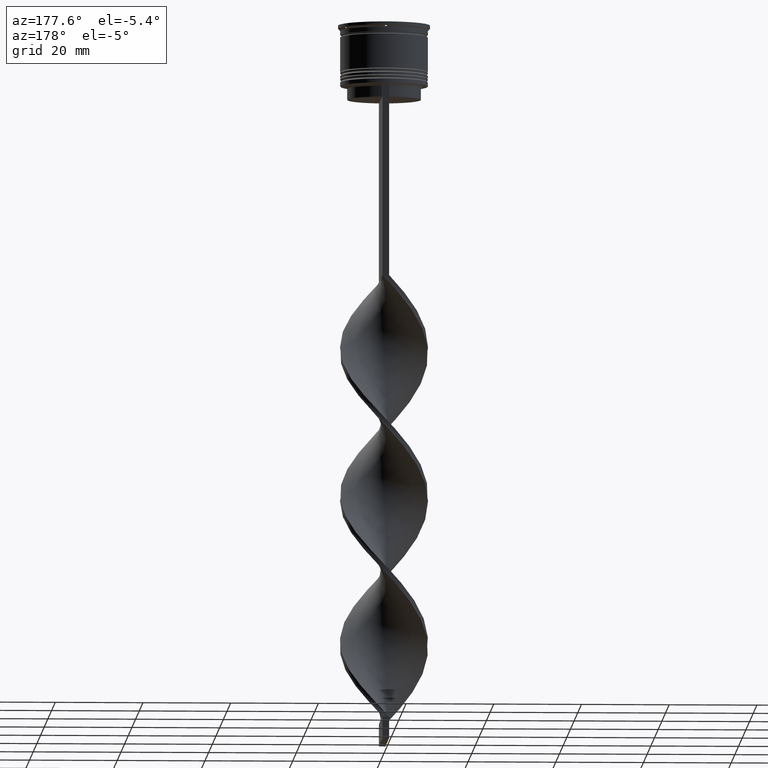
[diagram: clean part render]
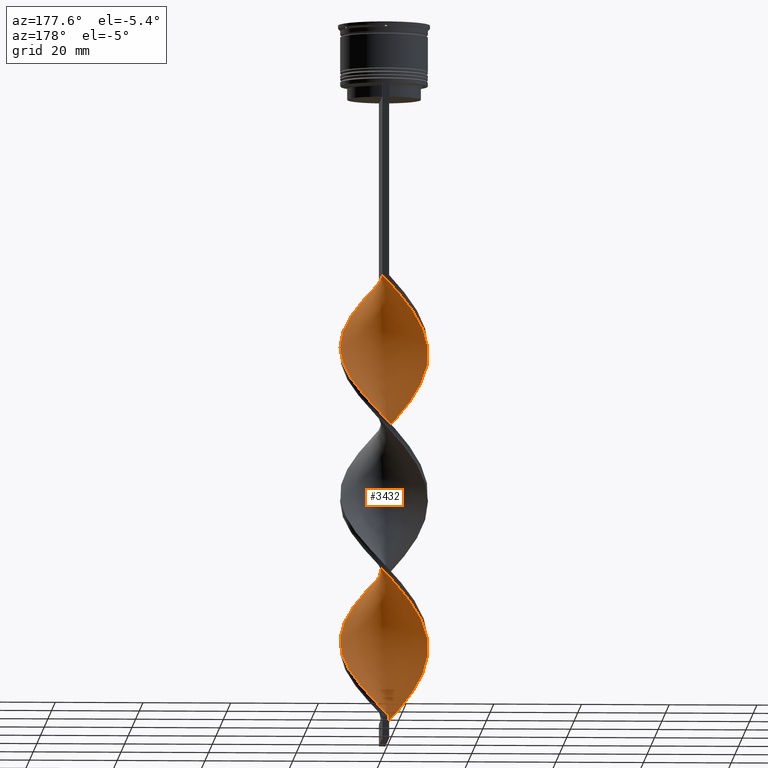
[diagram: same view with one face highlighted and labeled with its STEP entity id]
A machine part, auxiliary view. The second image highlights one B-rep face of the part: STEP entity #3432.
In plain terms, the highlighted face is a freeform B-spline surface patch.
Its self-contained STEP definition (entity closure, byte-faithful):
#1 = CARTESIAN_POINT ( 'NONE',  ( 9.035254037844389075, 4.350480947161663003, -114.1111111111111285 ) ) ;
#4 = CARTESIAN_POINT ( 'NONE',  ( -7.691465658176945830, 6.520334342467821287, -135.4333333333333371 ) ) ;
#18 = CARTESIAN_POINT ( 'NONE',  ( -3.824412864799130674, -9.329912654898729230, -155.6333333333333258 ) ) ;
#42 = CARTESIAN_POINT ( 'NONE',  ( -1.801042352656766932, -9.921171823550739788, -157.8777777777777942 ) ) ;
#45 = CARTESIAN_POINT ( 'NONE',  ( 6.929600300004795876, -7.248664682696629669, -100.6444444444444599 ) ) ;
#55 = CARTESIAN_POINT ( 'NONE',  ( -3.382207337526049962, 9.440507058732857004, -129.8222222222222229 ) ) ;
#67 = CARTESIAN_POINT ( 'NONE',  ( -7.691465658176951159, -6.520334342467823063, -115.2333333333333343 ) ) ;
#71 = CARTESIAN_POINT ( 'NONE',  ( 4.374444612454384540, -9.085022743012224566, -97.27777777777779988 ) ) ;
#76 = EDGE_CURVE ( 'NONE', #321, #3367, #2450, .T. ) ;
#77 = CARTESIAN_POINT ( 'NONE',  ( -7.288592354231109738, 6.967770475720659107, -99.52222222222223991 ) ) ;
#88 = CARTESIAN_POINT ( 'NONE',  ( 7.933296209543089006, -6.133947444480539524, -134.3111111111111313 ) ) ;
#90 = CARTESIAN_POINT ( 'NONE',  ( 9.278802417170323835, -3.803462330970840632, -105.1333333333333400 ) ) ;
#97 = CARTESIAN_POINT ( 'NONE',  ( 9.035254037844390851, -4.350480947161673662, -69.22222222222222854 ) ) ;
#107 = CARTESIAN_POINT ( 'NONE',  ( 5.271089777143525446, 8.531008882968833973, -152.2666666666666799 ) ) ;
#112 = CARTESIAN_POINT ( 'NONE',  ( 7.933296209543089006, -6.133947444480539524, -66.97777777777777430 ) ) ;
#118 = CARTESIAN_POINT ( 'NONE',  ( -5.680638183180775513, 8.330891533339592314, -97.27777777777778567 ) ) ;
#129 = CARTESIAN_POINT ( 'NONE',  ( 9.866822606231998805, 1.791176054202738843, -75.95555555555554861 ) ) ;
#139 = CARTESIAN_POINT ( 'NONE',  ( 9.492508010833713428, -3.400837481082924718, -137.6777777777777487 ) ) ;
#144 = DIRECTION ( 'NONE',  ( 0.000000000000000000, 1.000000000000000000, 0.000000000000000000 ) ) ;
#150 = CARTESIAN_POINT ( 'NONE',  ( -5.680638183180775513, 8.330891533339592314, -97.27777777777779988 ) ) ;
#155 = CARTESIAN_POINT ( 'NONE',  ( 6.484615268705942626, 7.649331004530116829, -118.6000000000000085 ) ) ;
#156 = CARTESIAN_POINT ( 'NONE',  ( -3.382207337526049518, 9.440507058732857004, -62.48888888888889426 ) ) ;
#164 = CARTESIAN_POINT ( 'NONE',  ( 8.578000064855064721, 5.300124413240417276, -115.2333333333333343 ) ) ;
#180 = CARTESIAN_POINT ( 'NONE',  ( -6.929600300004796765, 7.248664682696627892, -66.97777777777777430 ) ) ;
#202 = CARTESIAN_POINT ( 'NONE',  ( -9.866822606231991699, 1.791176054202741730, -73.71111111111112280 ) ) ;
#224 = CARTESIAN_POINT ( 'NONE',  ( -7.933296209543087230, -6.133947444480532418, -150.0222222222222115 ) ) ;
#241 = CARTESIAN_POINT ( 'NONE',  ( -3.824412864799130674, -9.329912654898729230, -88.29999999999998295 ) ) ;
#264 = CARTESIAN_POINT ( 'NONE',  ( -10.02361530113347143, -0.2993932111503280202, -143.2888888888889198 ) ) ;
#270 = CARTESIAN_POINT ( 'NONE',  ( -7.288592354231108850, -6.967770475720649337, -83.81111111111111711 ) ) ;
#291 = CARTESIAN_POINT ( 'NONE',  ( -0.7500000000000013323, -9.999999999999998224, -159.0000000000000000 ) ) ;
#313 = CARTESIAN_POINT ( 'NONE',  ( -8.578000064855064721, -5.300124413240419052, -148.8999999999999488 ) ) ;
#316 = CARTESIAN_POINT ( 'NONE',  ( -1.801042352656767154, -9.921171823550741564, -90.54444444444445139 ) ) ;
#320 = CARTESIAN_POINT ( 'NONE',  ( 8.578000064855064721, 5.300124413240417276, -115.2333333333333343 ) ) ;
#321 = VERTEX_POINT ( 'NONE', #3156 ) ;
#338 = CARTESIAN_POINT ( 'NONE',  ( 9.992147806631789919, -1.352917631973299173, -72.58888888888890278 ) ) ;
#341 = CARTESIAN_POINT ( 'NONE',  ( 6.167734941832646811, -7.976995022925432721, -99.52222222222223991 ) ) ;
#346 = CARTESIAN_POINT ( 'NONE',  ( 2.812727608727948247, -9.625542239224740726, -60.24444444444444713 ) ) ;
#359 = CARTESIAN_POINT ( 'NONE',  ( 5.271089777143525446, 8.531008882968833973, -84.93333333333333712 ) ) ;
#362 = CARTESIAN_POINT ( 'NONE',  ( 2.389970062597711831, -9.795991374453492995, -95.03333333333331723 ) ) ;
#374 = CARTESIAN_POINT ( 'NONE',  ( 4.374444612454393422, 9.085022743012228119, -153.3888888888889142 ) ) ;
#391 = CARTESIAN_POINT ( 'NONE',  ( -8.879042417511836760, -4.778703763208835831, -112.9888888888888943 ) ) ;
#401 = CARTESIAN_POINT ( 'NONE',  ( 9.278802417170330941, 3.803462330970840632, -78.20000000000000284 ) ) ;
#412 = CARTESIAN_POINT ( 'NONE',  ( 9.742327908732750785, -2.376877556528111057, -138.8000000000000114 ) ) ;
#421 = CARTESIAN_POINT ( 'NONE',  ( 2.812727608727948247, -9.625542239224740726, -127.5777777777777828 ) ) ;
#428 = CARTESIAN_POINT ( 'NONE',  ( -9.492508010833709875, -3.400837481082919389, -79.32222222222222285 ) ) ;
#431 = CARTESIAN_POINT ( 'NONE',  ( 0.7500000000000001110, -10.00000000000000533, -125.3333333333333570 ) ) ;
#440 = CARTESIAN_POINT ( 'NONE',  ( 10.05508279563516716, 0.7541312096726368042, -74.83333333333332860 ) ) ;
#447 = CARTESIAN_POINT ( 'NONE',  ( 4.374444612454393422, 9.085022743012228119, -86.05555555555557135 ) ) ;
#459 = CARTESIAN_POINT ( 'NONE',  ( 9.492508010833715204, -3.400837481082924718, -70.34444444444444855 ) ) ;
#487 = CARTESIAN_POINT ( 'NONE',  ( -9.866822606231991699, 1.791176054202741952, -73.71111111111112280 ) ) ;
#493 = CARTESIAN_POINT ( 'NONE',  ( -6.484615268705941737, -7.649331004530116829, -84.93333333333333712 ) ) ;
#503 = CARTESIAN_POINT ( 'NONE',  ( -4.374444612454386316, 9.085022743012224566, -63.61111111111112137 ) ) ;
#533 = CARTESIAN_POINT ( 'NONE',  ( -8.578000064855064721, -5.300124413240419052, -81.56666666666664867 ) ) ;
#558 = CARTESIAN_POINT ( 'NONE',  ( -9.992147806631782814, -1.352917631973294510, -77.07777777777778283 ) ) ;
#570 = CARTESIAN_POINT ( 'NONE',  ( -0.7500000000000005551, -3.333333333333330373, -159.0000000000000000 ) ) ;
#574 = CARTESIAN_POINT ( 'NONE',  ( 8.285254037844390851, 5.649519052838329891, -80.44444444444445708 ) ) ;
#586 = CARTESIAN_POINT ( 'NONE',  ( 0.7500000000000002220, 9.999999999999998224, -125.3333333333333570 ) ) ;
#591 = CARTESIAN_POINT ( 'NONE',  ( -3.382207337526049518, 9.440507058732857004, -129.8222222222222229 ) ) ;
#595 = CARTESIAN_POINT ( 'NONE',  ( -9.035254037844387298, -4.350480947161667444, -147.7777777777777715 ) ) ;
#596 = CARTESIAN_POINT ( 'NONE',  ( 4.752525523989958423, 8.830402094119152778, -120.8444444444444485 ) ) ;
#620 = CARTESIAN_POINT ( 'NONE',  ( -9.492508010833708099, -3.400837481082919389, -146.6555555555555657 ) ) ;
#632 = CARTESIAN_POINT ( 'NONE',  ( -8.285254037844383745, 5.649519052838329891, -136.5555555555555713 ) ) ;
#641 = CARTESIAN_POINT ( 'NONE',  ( 5.680638183180777290, -8.330891533339590538, -63.61111111111111427 ) ) ;
#655 = EDGE_LOOP ( 'NONE', ( #1326, #727, #1997, #3649 ) ) ;
#660 = CARTESIAN_POINT ( 'NONE',  ( -9.992147806631782814, -1.352917631973294510, -144.4111111111111541 ) ) ;
#663 = CARTESIAN_POINT ( 'NONE',  ( 7.691465658176943165, -6.520334342467822175, -101.7666666666666515 ) ) ;
#682 = CARTESIAN_POINT ( 'NONE',  ( 9.278802417170330941, 3.803462330970840632, -145.5333333333333599 ) ) ;
#697 = CARTESIAN_POINT ( 'NONE',  ( -7.933296209543089006, 6.133947444480543076, -100.6444444444444599 ) ) ;
#704 = CARTESIAN_POINT ( 'NONE',  ( -5.271089777143526334, -8.531008882968833973, -118.6000000000000085 ) ) ;
#712 = CARTESIAN_POINT ( 'NONE',  ( 7.288592354231111514, -6.967770475720657330, -133.1888888888889255 ) ) ;
#723 = CARTESIAN_POINT ( 'NONE',  ( 6.167734941832656581, 7.976995022925434498, -83.81111111111111711 ) ) ;
#727 = ORIENTED_EDGE ( 'NONE', *, *, #2250, .T. ) ;
#735 = CARTESIAN_POINT ( 'NONE',  ( 6.929600300004804758, 7.248664682696628780, -150.0222222222222115 ) ) ;
#745 = CARTESIAN_POINT ( 'NONE',  ( 9.742327908732750785, -2.376877556528111057, -71.46666666666668277 ) ) ;
#753 = CARTESIAN_POINT ( 'NONE',  ( -8.285254037844394404, -5.649519052838325450, -114.1111111111111285 ) ) ;
#763 = CARTESIAN_POINT ( 'NONE',  ( 4.374444612454394310, 9.085022743012228119, -86.05555555555557135 ) ) ;
#783 = CARTESIAN_POINT ( 'NONE',  ( -8.578000064855068274, 5.300124413240425270, -101.7666666666666515 ) ) ;
#801 = CARTESIAN_POINT ( 'NONE',  ( -6.167734941832649476, 7.976995022925432721, -65.85555555555555429 ) ) ;
#807 = CARTESIAN_POINT ( 'NONE',  ( 10.05508279563516716, 0.7541312096726368042, -142.1666666666666856 ) ) ;
#833 = CARTESIAN_POINT ( 'NONE',  ( -9.742327908732745456, -2.376877556528107949, -78.20000000000000284 ) ) ;
#838 = CARTESIAN_POINT ( 'NONE',  ( 3.382207337526056179, 9.440507058732862333, -154.5111111111111200 ) ) ;
#876 = CARTESIAN_POINT ( 'NONE',  ( -0.3010423526567641006, 10.07882817644925666, -59.12222222222222712 ) ) ;
#879 = CARTESIAN_POINT ( 'NONE',  ( -4.374444612454386316, 9.085022743012224566, -63.61111111111111427 ) ) ;
#897 = CARTESIAN_POINT ( 'NONE',  ( -0.3010423526567642116, 10.07882817644925666, -126.4555555555555628 ) ) ;
#903 = CARTESIAN_POINT ( 'NONE',  ( 10.02361530113347143, 0.2993932111503244675, -109.6222222222222342 ) ) ;
#920 = CARTESIAN_POINT ( 'NONE',  ( -1.801042352656767154, -9.921171823550741564, -157.8777777777777942 ) ) ;
#921 = CARTESIAN_POINT ( 'NONE',  ( 9.035254037844390851, -4.350480947161673662, -69.22222222222222854 ) ) ;
#941 = CARTESIAN_POINT ( 'NONE',  ( -2.389970062597713163, 9.795991374453491218, -128.6999999999999886 ) ) ;
#954 = CARTESIAN_POINT ( 'NONE',  ( -10.05508279563516005, 0.7541312096726382475, -142.1666666666666856 ) ) ;
#961 = CARTESIAN_POINT ( 'NONE',  ( 7.288592354231113291, 6.967770475720644896, -117.4777777777777885 ) ) ;
#978 = CARTESIAN_POINT ( 'NONE',  ( 9.278802417170330941, 3.803462330970840632, -78.20000000000000284 ) ) ;
#992 = CARTESIAN_POINT ( 'NONE',  ( -5.271089777143520116, 8.531008882968830420, -132.0666666666666629 ) ) ;
#997 = CARTESIAN_POINT ( 'NONE',  ( 2.812727608727948247, -9.625542239224740726, -127.5777777777777828 ) ) ;
#1004 = CARTESIAN_POINT ( 'NONE',  ( 4.752525523989954870, -8.830402094119163436, -62.48888888888889426 ) ) ;
#1009 = CARTESIAN_POINT ( 'NONE',  ( -9.992147806631789919, 1.352917631973302282, -106.2555555555555742 ) ) ;
#1014 = CARTESIAN_POINT ( 'NONE',  ( 9.678562416828828674, 2.828220898732840993, -77.07777777777778283 ) ) ;
#1020 = CARTESIAN_POINT ( 'NONE',  ( -7.288592354231109738, 6.967770475720659107, -99.52222222222223991 ) ) ;
#1033 = CARTESIAN_POINT ( 'NONE',  ( -4.752525523989951317, 8.830402094119165213, -96.15555555555556566 ) ) ;
#1044 = CARTESIAN_POINT ( 'NONE',  ( -1.801042352656761159, 9.921171823550748670, -92.78888888888889142 ) ) ;
#1054 = CARTESIAN_POINT ( 'NONE',  ( 7.691465658176951159, 6.520334342467823951, -81.56666666666666288 ) ) ;
#1060 = CARTESIAN_POINT ( 'NONE',  ( -9.278802417170323835, 3.803462330970839744, -71.46666666666668277 ) ) ;
#1063 = CARTESIAN_POINT ( 'NONE',  ( 10.02361530113347854, -0.2993932111503322391, -141.0444444444444514 ) ) ;
#1073 = CARTESIAN_POINT ( 'NONE',  ( -9.678562416828830450, -2.828220898732835220, -110.7444444444444542 ) ) ;
#1080 = CARTESIAN_POINT ( 'NONE',  ( -9.678562416828818016, 2.828220898732843214, -72.58888888888890278 ) ) ;
#1087 = CARTESIAN_POINT ( 'NONE',  ( -2.389970062597713163, 9.795991374453491218, -61.36666666666666003 ) ) ;
#1093 = CARTESIAN_POINT ( 'NONE',  ( 9.035254037844390851, -4.350480947161673662, -136.5555555555555713 ) ) ;
#1113 = CARTESIAN_POINT ( 'NONE',  ( -7.288592354231108850, -6.967770475720650225, -83.81111111111111711 ) ) ;
#1116 = CARTESIAN_POINT ( 'NONE',  ( 1.345506207627244155, 9.937409775451381932, -156.7555555555555600 ) ) ;
#1126 = CARTESIAN_POINT ( 'NONE',  ( -2.812727608727951356, -9.625542239224735397, -156.7555555555555600 ) ) ;
#1127 = CARTESIAN_POINT ( 'NONE',  ( 10.05508279563516005, -0.7541312096726393577, -108.5000000000000000 ) ) ;
#1133 = CARTESIAN_POINT ( 'NONE',  ( 6.929600300004804758, 7.248664682696628780, -150.0222222222222115 ) ) ;
#1145 = CARTESIAN_POINT ( 'NONE',  ( -1.801042352656766932, -9.921171823550739788, -90.54444444444445139 ) ) ;
#1172 = CARTESIAN_POINT ( 'NONE',  ( 7.691465658176944054, -6.520334342467822175, -101.7666666666666515 ) ) ;
#1179 = CARTESIAN_POINT ( 'NONE',  ( 9.866822606231998805, 1.791176054202738843, -143.2888888888889198 ) ) ;
#1192 = CARTESIAN_POINT ( 'NONE',  ( -9.678562416828818016, 2.828220898732842770, -139.9222222222222172 ) ) ;
#1215 = CARTESIAN_POINT ( 'NONE',  ( -4.374444612454386316, 9.085022743012224566, -130.9444444444444287 ) ) ;
#1225 = CARTESIAN_POINT ( 'NONE',  ( 2.812727608727952688, 9.625542239224735397, -123.0888888888888886 ) ) ;
#1242 = CARTESIAN_POINT ( 'NONE',  ( 1.801042352656772705, 9.921171823550739788, -124.2111111111111370 ) ) ;
#1262 = CARTESIAN_POINT ( 'NONE',  ( 9.866822606231998805, 1.791176054202738843, -75.95555555555554861 ) ) ;
#1273 = CARTESIAN_POINT ( 'NONE',  ( 2.812727608727948247, -9.625542239224740726, -60.24444444444444713 ) ) ;
#1280 = EDGE_CURVE ( 'NONE', #3491, #321, #3159, .T. ) ;
#1286 = CARTESIAN_POINT ( 'NONE',  ( 6.167734941832655693, 7.976995022925434498, -151.1444444444444457 ) ) ;
#1296 = CARTESIAN_POINT ( 'NONE',  ( -8.879042417511836760, -4.778703763208834943, -112.9888888888888943 ) ) ;
#1305 = CARTESIAN_POINT ( 'NONE',  ( -5.271089777143526334, -8.531008882968833973, -118.6000000000000085 ) ) ;
#1312 = CARTESIAN_POINT ( 'NONE',  ( -9.492508010833711651, 3.400837481082930491, -104.0111111111111057 ) ) ;
#1321 = CARTESIAN_POINT ( 'NONE',  ( -9.742327908732745456, -2.376877556528107505, -78.20000000000000284 ) ) ;
#1325 = CARTESIAN_POINT ( 'NONE',  ( 3.382207337526056179, 9.440507058732862333, -154.5111111111111200 ) ) ;
#1326 = ORIENTED_EDGE ( 'NONE', *, *, #2626, .F. ) ;
#1332 = CARTESIAN_POINT ( 'NONE',  ( 5.680638183180777290, -8.330891533339590538, -130.9444444444444571 ) ) ;
#1340 = CARTESIAN_POINT ( 'NONE',  ( 3.824412864799132006, -9.329912654898736335, -128.6999999999999886 ) ) ;
#1353 = CARTESIAN_POINT ( 'NONE',  ( -4.374444612454396974, -9.085022743012226343, -119.7222222222222143 ) ) ;
#1361 = CARTESIAN_POINT ( 'NONE',  ( 10.05508279563516716, 0.7541312096726368042, -142.1666666666666856 ) ) ;
#1376 = CARTESIAN_POINT ( 'NONE',  ( -6.484615268705943514, 7.649331004530123934, -98.40000000000001990 ) ) ;
#1407 = CARTESIAN_POINT ( 'NONE',  ( -10.02361530113347143, -0.2993932111503280202, -75.95555555555554861 ) ) ;
#1414 = CARTESIAN_POINT ( 'NONE',  ( 8.285254037844390851, 5.649519052838329891, -147.7777777777777715 ) ) ;
#1433 = CARTESIAN_POINT ( 'NONE',  ( 9.278802417170323835, -3.803462330970840188, -105.1333333333333400 ) ) ;
#1438 = CARTESIAN_POINT ( 'NONE',  ( 7.933296209543089006, -6.133947444480539524, -134.3111111111111313 ) ) ;
#1442 = CARTESIAN_POINT ( 'NONE',  ( 0.7500000000000001110, -10.00000000000000533, -58.00000000000000000 ) ) ;
#1445 = CARTESIAN_POINT ( 'NONE',  ( 0.7500000000000002220, 9.999999999999998224, -58.00000000000000000 ) ) ;
#1451 = CARTESIAN_POINT ( 'NONE',  ( -7.933296209543087230, -6.133947444480532418, -82.68888888888889710 ) ) ;
#1460 = CARTESIAN_POINT ( 'NONE',  ( 5.680638183180778178, 8.330891533339583432, -119.7222222222222143 ) ) ;
#1468 = CARTESIAN_POINT ( 'NONE',  ( -8.578000064855064721, -5.300124413240419052, -148.8999999999999773 ) ) ;
#1486 = CARTESIAN_POINT ( 'NONE',  ( -2.389970062597713163, 9.795991374453491218, -128.7000000000000171 ) ) ;
#1490 = CARTESIAN_POINT ( 'NONE',  ( -7.933296209543087230, -6.133947444480532418, -150.0222222222222115 ) ) ;
#1495 = CARTESIAN_POINT ( 'NONE',  ( -6.484615268705941737, -7.649331004530116829, -84.93333333333333712 ) ) ;
#1512 = CARTESIAN_POINT ( 'NONE',  ( -4.752525523989953982, -8.830402094119154555, -154.5111111111111200 ) ) ;
#1513 = CARTESIAN_POINT ( 'NONE',  ( 1.801042352656765155, -9.921171823550746893, -59.12222222222222712 ) ) ;
#1517 = CARTESIAN_POINT ( 'NONE',  ( -5.680638183180776402, -8.330891533339583432, -86.05555555555557135 ) ) ;
#1533 = CARTESIAN_POINT ( 'NONE',  ( -9.278802417170323835, 3.803462330970839300, -138.8000000000000114 ) ) ;
#1535 = CARTESIAN_POINT ( 'NONE',  ( -0.7500000000000014433, -9.999999999999998224, -91.66666666666667140 ) ) ;
#1558 = CARTESIAN_POINT ( 'NONE',  ( 7.288592354231111514, -6.967770475720657330, -65.85555555555555429 ) ) ;
#1566 = CARTESIAN_POINT ( 'NONE',  ( -9.278802417170323835, 3.803462330970839744, -138.8000000000000114 ) ) ;
#1576 = CARTESIAN_POINT ( 'NONE',  ( -8.285254037844383745, 5.649519052838329891, -136.5555555555555713 ) ) ;
#1588 = CARTESIAN_POINT ( 'NONE',  ( -2.389970062597713163, 9.795991374453491218, -61.36666666666666003 ) ) ;
#1590 = CARTESIAN_POINT ( 'NONE',  ( 9.866822606231998805, 1.791176054202738843, -143.2888888888889198 ) ) ;
#1599 = CARTESIAN_POINT ( 'NONE',  ( -9.278802417170330941, -3.803462330970838856, -111.8666666666666742 ) ) ;
#1604 = CARTESIAN_POINT ( 'NONE',  ( -2.389970062597717604, -9.795991374453498324, -121.9666666666666544 ) ) ;
#1612 = VECTOR ( 'NONE', #144, 1000.000000000000000 ) ;
#1614 = CARTESIAN_POINT ( 'NONE',  ( 0.7500000000000001110, -10.00000000000000533, -125.3333333333333570 ) ) ;
#1627 = CARTESIAN_POINT ( 'NONE',  ( 9.992147806631789919, -1.352917631973299173, -139.9222222222222172 ) ) ;
#1628 = CARTESIAN_POINT ( 'NONE',  ( 10.05508279563516005, -0.7541312096726393577, -108.5000000000000000 ) ) ;
#1633 = CARTESIAN_POINT ( 'NONE',  ( 3.824412864799132006, -9.329912654898734559, -128.7000000000000171 ) ) ;
#1644 = CARTESIAN_POINT ( 'NONE',  ( -6.929600300004805646, -7.248664682696627892, -116.3555555555555685 ) ) ;
#1652 = CARTESIAN_POINT ( 'NONE',  ( 6.484615268705944402, -7.649331004530123934, -64.73333333333333428 ) ) ;
#1658 = CARTESIAN_POINT ( 'NONE',  ( -7.691465658176945830, 6.520334342467821287, -68.10000000000000853 ) ) ;
#1661 = CARTESIAN_POINT ( 'NONE',  ( 0.3010423526567679309, 10.07882817644926376, -90.54444444444445139 ) ) ;
#1677 = CARTESIAN_POINT ( 'NONE',  ( 2.389970062597715827, 9.795991374453498324, -88.29999999999998295 ) ) ;
#1691 = CARTESIAN_POINT ( 'NONE',  ( 10.02361530113347143, 0.2993932111503245785, -109.6222222222222342 ) ) ;
#1696 = CARTESIAN_POINT ( 'NONE',  ( 8.578000064855070050, -5.300124413240424381, -135.4333333333333371 ) ) ;
#1707 = CARTESIAN_POINT ( 'NONE',  ( -0.3010423526567642116, 10.07882817644925666, -59.12222222222222712 ) ) ;
#1719 = CARTESIAN_POINT ( 'NONE',  ( -10.02361530113347143, -0.2993932111503279092, -75.95555555555554861 ) ) ;
#1725 = CARTESIAN_POINT ( 'NONE',  ( 0.7500000000000001110, 9.999999999999998224, -58.00000000000000000 ) ) ;
#1746 = CARTESIAN_POINT ( 'NONE',  ( 0.7500000000000002220, 9.999999999999998224, -58.00000000000000000 ) ) ;
#1749 = CARTESIAN_POINT ( 'NONE',  ( -9.278802417170323835, 3.803462330970839300, -71.46666666666668277 ) ) ;
#1770 = CARTESIAN_POINT ( 'NONE',  ( -7.691465658176945830, 6.520334342467821287, -68.10000000000002274 ) ) ;
#1785 = CARTESIAN_POINT ( 'NONE',  ( -1.345506207627238382, 9.937409775451374827, -60.24444444444444713 ) ) ;
#1790 = CARTESIAN_POINT ( 'NONE',  ( -6.484615268705941737, -7.649331004530116829, -152.2666666666666799 ) ) ;
#1811 = CARTESIAN_POINT ( 'NONE',  ( -3.824412864799130674, -9.329912654898727453, -155.6333333333333542 ) ) ;
#1812 = CARTESIAN_POINT ( 'NONE',  ( -5.680638183180776402, -8.330891533339581656, -153.3888888888889142 ) ) ;
#1824 = CARTESIAN_POINT ( 'NONE',  ( 9.992147806631784590, 1.352917631973288071, -110.7444444444444542 ) ) ;
#1837 = CARTESIAN_POINT ( 'NONE',  ( 9.678562416828826898, 2.828220898732840549, -77.07777777777778283 ) ) ;
#1839 = CARTESIAN_POINT ( 'NONE',  ( -4.752525523989953982, -8.830402094119154555, -87.17777777777779136 ) ) ;
#1845 = CARTESIAN_POINT ( 'NONE',  ( -8.879042417511827878, 4.778703763208838495, -137.6777777777777487 ) ) ;
#1857 = CARTESIAN_POINT ( 'NONE',  ( 8.578000064855068274, -5.300124413240424381, -68.10000000000002274 ) ) ;
#1877 = CARTESIAN_POINT ( 'NONE',  ( 6.929600300004804758, 7.248664682696628780, -82.68888888888889710 ) ) ;
#1896 = CARTESIAN_POINT ( 'NONE',  ( 8.879042417511834984, 4.778703763208838495, -146.6555555555555657 ) ) ;
#1906 = CARTESIAN_POINT ( 'NONE',  ( -9.742327908732750785, 2.376877556528111946, -105.1333333333333400 ) ) ;
#1910 = VERTEX_POINT ( 'NONE', #1442 ) ;
#1915 = CARTESIAN_POINT ( 'NONE',  ( -1.345506207627245487, -9.937409775451381932, -123.0888888888888886 ) ) ;
#1923 = CARTESIAN_POINT ( 'NONE',  ( -4.374444612454396086, -9.085022743012226343, -119.7222222222222143 ) ) ;
#1935 = CARTESIAN_POINT ( 'NONE',  ( -9.866822606231998805, -1.791176054202735513, -109.6222222222222342 ) ) ;
#1943 = CARTESIAN_POINT ( 'NONE',  ( -10.05508279563516005, 0.7541312096726382475, -74.83333333333332860 ) ) ;
#1945 = CARTESIAN_POINT ( 'NONE',  ( 3.382207337526056179, 9.440507058732862333, -87.17777777777779136 ) ) ;
#1953 = CARTESIAN_POINT ( 'NONE',  ( -3.382207337526060620, -9.440507058732860557, -120.8444444444444485 ) ) ;
#1962 = CARTESIAN_POINT ( 'NONE',  ( -1.345506207627245487, -9.937409775451381932, -123.0888888888888886 ) ) ;
#1967 = CARTESIAN_POINT ( 'NONE',  ( 0.7500000000000001110, -10.00000000000000533, -58.00000000000000000 ) ) ;
#1972 = CARTESIAN_POINT ( 'NONE',  ( -9.035254037844390851, 4.350480947161678102, -102.8888888888888857 ) ) ;
#1989 = CARTESIAN_POINT ( 'NONE',  ( 5.271089777143525446, 8.531008882968833973, -84.93333333333333712 ) ) ;
#1996 = CARTESIAN_POINT ( 'NONE',  ( -5.271089777143520116, 8.531008882968830420, -64.73333333333333428 ) ) ;
#1997 = ORIENTED_EDGE ( 'NONE', *, *, #76, .F. ) ;
#2006 = CARTESIAN_POINT ( 'NONE',  ( 3.382207337526045965, -9.440507058732858781, -96.15555555555556566 ) ) ;
#2010 = CARTESIAN_POINT ( 'NONE',  ( 5.271089777143525446, 8.531008882968833973, -152.2666666666666799 ) ) ;
#2022 = CARTESIAN_POINT ( 'NONE',  ( 4.374444612454384540, -9.085022743012224566, -97.27777777777778567 ) ) ;
#2041 = CARTESIAN_POINT ( 'NONE',  ( -5.680638183180776402, -8.330891533339581656, -86.05555555555557135 ) ) ;
#2048 = CARTESIAN_POINT ( 'NONE',  ( 9.278802417170330941, 3.803462330970840632, -145.5333333333333599 ) ) ;
#2063 = CARTESIAN_POINT ( 'NONE',  ( 7.288592354231113291, 6.967770475720644896, -117.4777777777777885 ) ) ;
#2067 = CARTESIAN_POINT ( 'NONE',  ( -3.382207337526049962, 9.440507058732857004, -62.48888888888889426 ) ) ;
#2076 = CARTESIAN_POINT ( 'NONE',  ( -9.678562416828818016, 2.828220898732843214, -139.9222222222222172 ) ) ;
#2086 = CARTESIAN_POINT ( 'NONE',  ( -0.7500000000000014433, -9.999999999999998224, -159.0000000000000000 ) ) ;
#2087 = CARTESIAN_POINT ( 'NONE',  ( 9.866822606231989923, -1.791176054202747281, -107.3777777777777942 ) ) ;
#2104 = CARTESIAN_POINT ( 'NONE',  ( -6.929600300004796765, 7.248664682696627892, -134.3111111111111313 ) ) ;
#2113 = CARTESIAN_POINT ( 'NONE',  ( -6.929600300004796765, 7.248664682696627892, -134.3111111111111313 ) ) ;
#2127 = CARTESIAN_POINT ( 'NONE',  ( 10.05508279563516716, 0.7541312096726368042, -74.83333333333334281 ) ) ;
#2148 = CARTESIAN_POINT ( 'NONE',  ( 0.7500000000000001110, -10.00000000000000533, -58.00000000000000000 ) ) ;
#2168 = CARTESIAN_POINT ( 'NONE',  ( 8.879042417511834984, 4.778703763208838495, -79.32222222222222285 ) ) ;
#2189 = CARTESIAN_POINT ( 'NONE',  ( 9.742327908732750785, -2.376877556528111057, -71.46666666666668277 ) ) ;
#2210 = CARTESIAN_POINT ( 'NONE',  ( -6.484615268705943514, 7.649331004530123934, -98.40000000000001990 ) ) ;
#2218 = CARTESIAN_POINT ( 'NONE',  ( -3.824412864799130674, 9.329912654898736335, -95.03333333333331723 ) ) ;
#2223 = CARTESIAN_POINT ( 'NONE',  ( 4.752525523989954870, -8.830402094119163436, -129.8222222222222229 ) ) ;
#2229 = CARTESIAN_POINT ( 'NONE',  ( 6.929600300004804758, 7.248664682696628780, -82.68888888888889710 ) ) ;
#2239 = CARTESIAN_POINT ( 'NONE',  ( -3.824412864799130674, 9.329912654898738111, -95.03333333333331723 ) ) ;
#2243 = CARTESIAN_POINT ( 'NONE',  ( 3.382207337526045965, -9.440507058732858781, -96.15555555555556566 ) ) ;
#2250 = EDGE_CURVE ( 'NONE', #1910, #3367, #2491, .T. ) ;
#2251 = CARTESIAN_POINT ( 'NONE',  ( -7.691465658176951159, -6.520334342467823063, -115.2333333333333343 ) ) ;
#2259 = CARTESIAN_POINT ( 'NONE',  ( -6.167734941832649476, 7.976995022925432721, -65.85555555555555429 ) ) ;
#2262 = CARTESIAN_POINT ( 'NONE',  ( -3.382207337526060620, -9.440507058732860557, -120.8444444444444485 ) ) ;
#2273 = CARTESIAN_POINT ( 'NONE',  ( 10.02361530113347854, -0.2993932111503322391, -73.71111111111112280 ) ) ;
#2284 = CARTESIAN_POINT ( 'NONE',  ( -0.7499999999999988898, 10.00000000000000533, -159.0000000000000000 ) ) ;
#2290 = CARTESIAN_POINT ( 'NONE',  ( 9.992147806631788143, -1.352917631973299173, -72.58888888888890278 ) ) ;
#2305 = CARTESIAN_POINT ( 'NONE',  ( -8.285254037844383745, 5.649519052838329891, -69.22222222222222854 ) ) ;
#2311 = CARTESIAN_POINT ( 'NONE',  ( 9.992147806631788143, -1.352917631973299173, -139.9222222222222172 ) ) ;
#2326 = CARTESIAN_POINT ( 'NONE',  ( -0.7500000000000013323, -9.999999999999998224, -91.66666666666667140 ) ) ;
#2329 = CARTESIAN_POINT ( 'NONE',  ( 7.691465658176951159, 6.520334342467823951, -148.8999999999999773 ) ) ;
#2343 = CARTESIAN_POINT ( 'NONE',  ( -9.992147806631782814, -1.352917631973294288, -144.4111111111111256 ) ) ;
#2344 = CARTESIAN_POINT ( 'NONE',  ( 9.742327908732745456, 2.376877556528106172, -111.8666666666666742 ) ) ;
#2350 = CARTESIAN_POINT ( 'NONE',  ( 9.492508010833715204, -3.400837481082924718, -137.6777777777777487 ) ) ;
#2362 = CARTESIAN_POINT ( 'NONE',  ( -5.680638183180776402, -8.330891533339583432, -153.3888888888889142 ) ) ;
#2363 = CARTESIAN_POINT ( 'NONE',  ( -9.035254037844387298, -4.350480947161667444, -80.44444444444445708 ) ) ;
#2390 = CARTESIAN_POINT ( 'NONE',  ( -7.288592354231108850, -6.967770475720649337, -151.1444444444444457 ) ) ;
#2391 = CARTESIAN_POINT ( 'NONE',  ( -9.492508010833708099, -3.400837481082919389, -79.32222222222222285 ) ) ;
#2396 = CARTESIAN_POINT ( 'NONE',  ( 9.678562416828828674, 2.828220898732840993, -144.4111111111111256 ) ) ;
#2411 = CARTESIAN_POINT ( 'NONE',  ( 0.7500000000000001110, 9.999999999999998224, -125.3333333333333570 ) ) ;
#2417 = CARTESIAN_POINT ( 'NONE',  ( 9.678562416828818016, -2.828220898732846322, -106.2555555555555742 ) ) ;
#2421 = CARTESIAN_POINT ( 'NONE',  ( -0.3010423526567641006, 10.07882817644925666, -126.4555555555555770 ) ) ;
#2429 = CARTESIAN_POINT ( 'NONE',  ( -9.742327908732745456, -2.376877556528107505, -145.5333333333333599 ) ) ;
#2430 = CARTESIAN_POINT ( 'NONE',  ( 2.812727608727952688, 9.625542239224735397, -123.0888888888888886 ) ) ;
#2433 = CARTESIAN_POINT ( 'NONE',  ( -2.812727608727951356, -9.625542239224735397, -89.42222222222223138 ) ) ;
#2450 = B_SPLINE_CURVE_WITH_KNOTS ( 'NONE', 3,
 ( #3610, #570, #2710, #2472 ),
 .UNSPECIFIED., .F., .F.,
 ( 4, 4 ),
 ( 0.000000000000000000, 1.000000000000000000 ),
 .UNSPECIFIED. ) ;
#2457 = CARTESIAN_POINT ( 'NONE',  ( -8.879042417511827878, 4.778703763208837607, -137.6777777777777487 ) ) ;
#2466 = CARTESIAN_POINT ( 'NONE',  ( 0.7500000000000001110, -10.00000000000000533, -58.00000000000000000 ) ) ;
#2472 = CARTESIAN_POINT ( 'NONE',  ( -0.7499999999999988898, 10.00000000000000533, -159.0000000000000000 ) ) ;
#2477 = CARTESIAN_POINT ( 'NONE',  ( 7.933296209543087230, 6.133947444480531530, -116.3555555555555685 ) ) ;
#2491 =( BOUNDED_CURVE ( )  B_SPLINE_CURVE ( 2, ( #2466, #3075, #346, #2786, #1004, #3778, #1652, #3440, #112, #3179, #97, #459, #745, #2290, #2273, #440, #129, #1014, #401, #3754, #2536, #1054, #2229, #723, #1989, #763, #3723, #1677, #3198, #2581, #3738, #2898, #2875, #2218, #1033, #150, #1376, #77, #3498, #783, #1972, #1312, #3480, #2603, #3794, #2520, #1935, #1073, #1599, #1296, #2820, #2251, #3425, #3464, #704, #1353, #1953, #3146, #1915, #3124, #1614, #2838, #421, #1633, #2856, #1332, #2555, #3161, #1438, #1696, #1093, #2350, #2660, #2311, #3874, #807, #1179, #2396, #2048, #3554, #1414, #2329, #1133, #3519, #2010, #2975, #838, #3894, #1116, #2954, #3215 ),
 .UNSPECIFIED., .F., .T. ) 
 B_SPLINE_CURVE_WITH_KNOTS ( ( 3, 2, 2, 2, 2, 2, 2, 2, 2, 2, 2, 2, 2, 2, 2, 2, 2, 2, 2, 2, 2, 2, 2, 2, 2, 2, 2, 2, 2, 2, 2, 2, 2, 2, 2, 2, 2, 2, 2, 2, 2, 2, 2, 2, 2, 3 ),
 ( 0.000000000000000000, 0.01666666666666666644, 0.03333333333333333287, 0.05000000000000000971, 0.06666666666666666574, 0.08333333333333332871, 0.1000000000000000194, 0.1166666666666666546, 0.1333333333333333315, 0.1499999999999999944, 0.1666666666666666574, 0.1833333333333333204, 0.2000000000000000389, 0.2166666666666666741, 0.2333333333333333093, 0.2500000000000000000, 0.2666666666666666630, 0.2833333333333333259, 0.2999999999999999889, 0.3166666666666666519, 0.3333333333333333148, 0.3499999999999999223, 0.3666666666666666408, 0.3833333333333333592, 0.4000000000000000777, 0.4166666666666666852, 0.4333333333333333481, 0.4500000000000000111, 0.4666666666666666186, 0.4833333333333333370, 0.5000000000000000000, 0.5166666666666667185, 0.5333333333333333259, 0.5500000000000000444, 0.5666666666666666519, 0.5833333333333333703, 0.5999999999999999778, 0.6166666666666666963, 0.6333333333333333037, 0.6500000000000000222, 0.6666666666666666297, 0.6833333333333332371, 0.6999999999999998446, 0.7166666666666666741, 0.7333333333333332815, 0.7500000000000000000 ),
 .UNSPECIFIED. ) 
 CURVE ( )  GEOMETRIC_REPRESENTATION_ITEM ( )  RATIONAL_B_SPLINE_CURVE ( ( 1.000000000000000000, 0.9945218953682732899, 1.000000000000000000, 0.9945218953682732899, 1.000000000000000000, 0.9945218953682732899, 1.000000000000000000, 0.9945218953682732899, 1.000000000000000000, 0.9945218953682732899, 1.000000000000000000, 0.9945218953682732899, 1.000000000000000000, 0.9945218953682732899, 1.000000000000000000, 0.9945218953682732899, 1.000000000000000000, 0.9945218953682732899, 1.000000000000000000, 0.9945218953682732899, 1.000000000000000000, 0.9945218953682732899, 1.000000000000000000, 0.9945218953682732899, 1.000000000000000000, 0.9945218953682732899, 1.000000000000000000, 0.9945218953682732899, 1.000000000000000000, 0.9945218953682732899, 1.000000000000000000, 0.9945218953682732899, 1.000000000000000000, 0.9945218953682732899, 1.000000000000000000, 0.9945218953682732899, 1.000000000000000000, 0.9945218953682732899, 1.000000000000000000, 0.9945218953682732899, 1.000000000000000000, 0.9945218953682732899, 1.000000000000000000, 0.9945218953682732899, 1.000000000000000000, 0.9945218953682732899, 1.000000000000000000, 0.9945218953682732899, 1.000000000000000000, 0.9945218953682732899, 1.000000000000000000, 0.9945218953682732899, 1.000000000000000000, 0.9945218953682732899, 1.000000000000000000, 0.9945218953682732899, 1.000000000000000000, 0.9945218953682732899, 1.000000000000000000, 0.9945218953682732899, 1.000000000000000000, 0.9945218953682732899, 1.000000000000000000, 0.9945218953682732899, 1.000000000000000000, 0.9945218953682732899, 1.000000000000000000, 0.9945218953682732899, 1.000000000000000000, 0.9945218953682732899, 1.000000000000000000, 0.9945218953682732899, 1.000000000000000000, 0.9945218953682732899, 1.000000000000000000, 0.9945218953682732899, 1.000000000000000000, 0.9945218953682732899, 1.000000000000000000, 0.9945218953682732899, 1.000000000000000000, 0.9945218953682732899, 1.000000000000000000, 0.9945218953682732899, 1.000000000000000000, 0.9945218953682732899, 1.000000000000000000, 0.9945218953682732899, 1.000000000000000000, 0.9945218953682732899, 1.000000000000000000 ) ) 
 REPRESENTATION_ITEM ( '' )  );
#2493 = CARTESIAN_POINT ( 'NONE',  ( -9.866822606231991699, 1.791176054202741730, -141.0444444444444514 ) ) ;
#2512 = CARTESIAN_POINT ( 'NONE',  ( -8.578000064855068274, 5.300124413240425270, -101.7666666666666515 ) ) ;
#2520 = CARTESIAN_POINT ( 'NONE',  ( -10.05508279563516716, -0.7541312096726355829, -108.5000000000000000 ) ) ;
#2528 = CARTESIAN_POINT ( 'NONE',  ( -9.035254037844390851, 4.350480947161678102, -102.8888888888888857 ) ) ;
#2536 = CARTESIAN_POINT ( 'NONE',  ( 8.285254037844390851, 5.649519052838329891, -80.44444444444445708 ) ) ;
#2544 = CARTESIAN_POINT ( 'NONE',  ( -9.035254037844387298, -4.350480947161667444, -80.44444444444445708 ) ) ;
#2547 = CARTESIAN_POINT ( 'NONE',  ( 2.389970062597715827, 9.795991374453498324, -155.6333333333333258 ) ) ;
#2555 = CARTESIAN_POINT ( 'NONE',  ( 6.484615268705944402, -7.649331004530123934, -132.0666666666666629 ) ) ;
#2566 = CARTESIAN_POINT ( 'NONE',  ( -10.05508279563516716, -0.7541312096726356939, -108.5000000000000000 ) ) ;
#2577 = CARTESIAN_POINT ( 'NONE',  ( -9.866822606231991699, 1.791176054202741952, -141.0444444444444514 ) ) ;
#2581 = CARTESIAN_POINT ( 'NONE',  ( 0.3010423526567678754, 10.07882817644926376, -90.54444444444445139 ) ) ;
#2591 = CARTESIAN_POINT ( 'NONE',  ( 1.345506207627244155, 9.937409775451381932, -89.42222222222223138 ) ) ;
#2603 = CARTESIAN_POINT ( 'NONE',  ( -9.992147806631788143, 1.352917631973302282, -106.2555555555555742 ) ) ;
#2626 = EDGE_CURVE ( 'NONE', #1910, #3491, #3210, .T. ) ;
#2633 = CARTESIAN_POINT ( 'NONE',  ( 0.3010423526567601038, -10.07882817644925844, -92.78888888888889142 ) ) ;
#2656 = CARTESIAN_POINT ( 'NONE',  ( 9.678562416828818016, -2.828220898732845878, -106.2555555555555742 ) ) ;
#2660 = CARTESIAN_POINT ( 'NONE',  ( 9.742327908732750785, -2.376877556528111057, -138.8000000000000114 ) ) ;
#2666 = CARTESIAN_POINT ( 'NONE',  ( -0.7499999999999988898, 10.00000000000000533, -159.0000000000000000 ) ) ;
#2670 = CARTESIAN_POINT ( 'NONE',  ( -10.02361530113347143, -0.2993932111503279092, -143.2888888888889198 ) ) ;
#2672 = FACE_OUTER_BOUND ( 'NONE', #655, .T. ) ;
#2691 = CARTESIAN_POINT ( 'NONE',  ( 6.929600300004795876, -7.248664682696628780, -100.6444444444444599 ) ) ;
#2705 = CARTESIAN_POINT ( 'NONE',  ( 3.824412864799132450, 9.329912654898727453, -121.9666666666666544 ) ) ;
#2710 = CARTESIAN_POINT ( 'NONE',  ( -0.7499999999999997780, 3.333333333333337478, -159.0000000000000000 ) ) ;
#2717 = CARTESIAN_POINT ( 'NONE',  ( 7.933296209543089006, -6.133947444480539524, -66.97777777777777430 ) ) ;
#2735 = CARTESIAN_POINT ( 'NONE',  ( -7.691465658176945830, 6.520334342467821287, -135.4333333333333371 ) ) ;
#2740 = CARTESIAN_POINT ( 'NONE',  ( 9.492508010833711651, 3.400837481082915392, -112.9888888888888943 ) ) ;
#2757 = CARTESIAN_POINT ( 'NONE',  ( -7.288592354231108850, -6.967770475720650225, -151.1444444444444457 ) ) ;
#2762 = CARTESIAN_POINT ( 'NONE',  ( 7.933296209543087230, 6.133947444480531530, -116.3555555555555685 ) ) ;
#2779 = CARTESIAN_POINT ( 'NONE',  ( 10.02361530113347854, -0.2993932111503322391, -73.71111111111112280 ) ) ;
#2786 = CARTESIAN_POINT ( 'NONE',  ( 3.824412864799132006, -9.329912654898734559, -61.36666666666666003 ) ) ;
#2793 = CARTESIAN_POINT ( 'NONE',  ( -10.05508279563516005, 0.7541312096726381364, -142.1666666666666856 ) ) ;
#2796 = CARTESIAN_POINT ( 'NONE',  ( 8.285254037844381969, -5.649519052838333444, -102.8888888888888857 ) ) ;
#2808 = CARTESIAN_POINT ( 'NONE',  ( -10.02361530113348032, 0.2993932111503379012, -107.3777777777777942 ) ) ;
#2811 = CARTESIAN_POINT ( 'NONE',  ( 1.345506207627235717, -9.937409775451374827, -93.91111111111111143 ) ) ;
#2820 = CARTESIAN_POINT ( 'NONE',  ( -8.285254037844394404, -5.649519052838325450, -114.1111111111111285 ) ) ;
#2827 = CARTESIAN_POINT ( 'NONE',  ( 5.680638183180777290, -8.330891533339590538, -130.9444444444444287 ) ) ;
#2838 = CARTESIAN_POINT ( 'NONE',  ( 1.801042352656765155, -9.921171823550748670, -126.4555555555555770 ) ) ;
#2850 = CARTESIAN_POINT ( 'NONE',  ( 8.285254037844390851, 5.649519052838329891, -147.7777777777777715 ) ) ;
#2856 = CARTESIAN_POINT ( 'NONE',  ( 4.752525523989954870, -8.830402094119163436, -129.8222222222222229 ) ) ;
#2865 = CARTESIAN_POINT ( 'NONE',  ( -0.7499999999999988898, 10.00000000000000533, -91.66666666666667140 ) ) ;
#2875 = CARTESIAN_POINT ( 'NONE',  ( -2.812727608727946027, 9.625542239224740726, -93.91111111111111143 ) ) ;
#2882 = CARTESIAN_POINT ( 'NONE',  ( -8.285254037844383745, 5.649519052838329891, -69.22222222222222854 ) ) ;
#2886 = CARTESIAN_POINT ( 'NONE',  ( 6.484615268705944402, -7.649331004530123934, -132.0666666666666629 ) ) ;
#2898 = CARTESIAN_POINT ( 'NONE',  ( -1.801042352656761381, 9.921171823550750446, -92.78888888888889142 ) ) ;
#2912 = CARTESIAN_POINT ( 'NONE',  ( 9.992147806631784590, 1.352917631973288515, -110.7444444444444542 ) ) ;
#2932 = CARTESIAN_POINT ( 'NONE',  ( -5.271089777143520116, 8.531008882968830420, -64.73333333333333428 ) ) ;
#2942 = CARTESIAN_POINT ( 'NONE',  ( -9.992147806631782814, -1.352917631973294288, -77.07777777777778283 ) ) ;
#2949 = CARTESIAN_POINT ( 'NONE',  ( 5.271089777143518340, -8.531008882968828644, -98.40000000000001990 ) ) ;
#2954 = CARTESIAN_POINT ( 'NONE',  ( 0.3010423526567678754, 10.07882817644926376, -157.8777777777777942 ) ) ;
#2968 = CARTESIAN_POINT ( 'NONE',  ( -2.812727608727951356, -9.625542239224735397, -89.42222222222223138 ) ) ;
#2975 = CARTESIAN_POINT ( 'NONE',  ( 4.374444612454394310, 9.085022743012228119, -153.3888888888889142 ) ) ;
#2983 = CARTESIAN_POINT ( 'NONE',  ( 0.3010423526567679309, 10.07882817644926376, -157.8777777777777942 ) ) ;
#3008 = CARTESIAN_POINT ( 'NONE',  ( 6.484615268705942626, 7.649331004530116829, -118.6000000000000085 ) ) ;
#3023 = CARTESIAN_POINT ( 'NONE',  ( -4.374444612454386316, 9.085022743012224566, -130.9444444444444571 ) ) ;
#3029 = CARTESIAN_POINT ( 'NONE',  ( -2.812727608727951356, -9.625542239224735397, -156.7555555555555600 ) ) ;
#3037 = CARTESIAN_POINT ( 'NONE',  ( 9.742327908732745456, 2.376877556528106172, -111.8666666666666742 ) ) ;
#3049 = CARTESIAN_POINT ( 'NONE',  ( -5.271089777143520116, 8.531008882968830420, -132.0666666666666629 ) ) ;
#3066 = CARTESIAN_POINT ( 'NONE',  ( -1.345506207627238604, 9.937409775451374827, -127.5777777777777828 ) ) ;
#3075 = CARTESIAN_POINT ( 'NONE',  ( 1.801042352656765155, -9.921171823550748670, -59.12222222222222712 ) ) ;
#3087 = CARTESIAN_POINT ( 'NONE',  ( 6.167734941832655693, 7.976995022925434498, -83.81111111111111711 ) ) ;
#3101 = CARTESIAN_POINT ( 'NONE',  ( 7.691465658176951159, 6.520334342467823951, -148.8999999999999488 ) ) ;
#3115 = CARTESIAN_POINT ( 'NONE',  ( -9.678562416828828674, -2.828220898732835220, -110.7444444444444542 ) ) ;
#3124 = CARTESIAN_POINT ( 'NONE',  ( -0.3010423526567735375, -10.07882817644926376, -124.2111111111111370 ) ) ;
#3134 = CARTESIAN_POINT ( 'NONE',  ( 2.389970062597715827, 9.795991374453498324, -88.29999999999998295 ) ) ;
#3138 = CARTESIAN_POINT ( 'NONE',  ( 9.866822606231989923, -1.791176054202747503, -107.3777777777777942 ) ) ;
#3146 = CARTESIAN_POINT ( 'NONE',  ( -2.389970062597717604, -9.795991374453498324, -121.9666666666666544 ) ) ;
#3150 = CARTESIAN_POINT ( 'NONE',  ( -7.933296209543087230, -6.133947444480532418, -82.68888888888889710 ) ) ;
#3152 = CARTESIAN_POINT ( 'NONE',  ( -0.3010423526567735375, -10.07882817644926376, -124.2111111111111370 ) ) ;
#3156 = CARTESIAN_POINT ( 'NONE',  ( -0.7500000000000014433, -9.999999999999998224, -159.0000000000000000 ) ) ;
#3159 =( BOUNDED_CURVE ( )  B_SPLINE_CURVE ( 2, ( #1746, #876, #1785, #1588, #156, #503, #1996, #2259, #3801, #1658, #2882, #3184, #1060, #1080, #487, #1943, #1719, #2942, #1321, #428, #2544, #3447, #3150, #270, #1495, #1517, #1839, #3931, #2433, #316, #1535, #3434, #2811, #362, #2243, #71, #3381, #341, #45, #663, #2796, #3859, #90, #2417, #3138, #1628, #903, #1824, #3037, #2740, #1, #320, #2762, #2063, #155, #1460, #3582, #2705, #1225, #3300, #586, #2421, #3608, #1486, #591, #3023, #992, #3625, #2113, #4, #632, #1845, #1566, #2076, #2577, #954, #2670, #2343, #2429, #3927, #595, #1468, #224, #2390, #3547, #2362, #1512, #1811, #1126, #920, #2086 ),
 .UNSPECIFIED., .F., .T. ) 
 B_SPLINE_CURVE_WITH_KNOTS ( ( 3, 2, 2, 2, 2, 2, 2, 2, 2, 2, 2, 2, 2, 2, 2, 2, 2, 2, 2, 2, 2, 2, 2, 2, 2, 2, 2, 2, 2, 2, 2, 2, 2, 2, 2, 2, 2, 2, 2, 2, 2, 2, 2, 2, 2, 3 ),
 ( 0.000000000000000000, 0.01666666666666666644, 0.03333333333333333287, 0.05000000000000000971, 0.06666666666666666574, 0.08333333333333332871, 0.1000000000000000194, 0.1166666666666666546, 0.1333333333333333315, 0.1499999999999999944, 0.1666666666666666574, 0.1833333333333333204, 0.2000000000000000389, 0.2166666666666666741, 0.2333333333333333093, 0.2500000000000000000, 0.2666666666666666630, 0.2833333333333333259, 0.2999999999999999889, 0.3166666666666666519, 0.3333333333333333148, 0.3499999999999999223, 0.3666666666666666408, 0.3833333333333333592, 0.4000000000000000777, 0.4166666666666666852, 0.4333333333333333481, 0.4500000000000000111, 0.4666666666666666186, 0.4833333333333333370, 0.5000000000000000000, 0.5166666666666667185, 0.5333333333333333259, 0.5500000000000000444, 0.5666666666666666519, 0.5833333333333333703, 0.5999999999999999778, 0.6166666666666666963, 0.6333333333333333037, 0.6500000000000000222, 0.6666666666666666297, 0.6833333333333332371, 0.6999999999999998446, 0.7166666666666666741, 0.7333333333333332815, 0.7500000000000000000 ),
 .UNSPECIFIED. ) 
 CURVE ( )  GEOMETRIC_REPRESENTATION_ITEM ( )  RATIONAL_B_SPLINE_CURVE ( ( 1.000000000000000000, 0.9945218953682732899, 1.000000000000000000, 0.9945218953682732899, 1.000000000000000000, 0.9945218953682732899, 1.000000000000000000, 0.9945218953682732899, 1.000000000000000000, 0.9945218953682732899, 1.000000000000000000, 0.9945218953682732899, 1.000000000000000000, 0.9945218953682732899, 1.000000000000000000, 0.9945218953682732899, 1.000000000000000000, 0.9945218953682732899, 1.000000000000000000, 0.9945218953682732899, 1.000000000000000000, 0.9945218953682732899, 1.000000000000000000, 0.9945218953682732899, 1.000000000000000000, 0.9945218953682732899, 1.000000000000000000, 0.9945218953682732899, 1.000000000000000000, 0.9945218953682732899, 1.000000000000000000, 0.9945218953682732899, 1.000000000000000000, 0.9945218953682732899, 1.000000000000000000, 0.9945218953682732899, 1.000000000000000000, 0.9945218953682732899, 1.000000000000000000, 0.9945218953682732899, 1.000000000000000000, 0.9945218953682732899, 1.000000000000000000, 0.9945218953682732899, 1.000000000000000000, 0.9945218953682732899, 1.000000000000000000, 0.9945218953682732899, 1.000000000000000000, 0.9945218953682732899, 1.000000000000000000, 0.9945218953682732899, 1.000000000000000000, 0.9945218953682732899, 1.000000000000000000, 0.9945218953682732899, 1.000000000000000000, 0.9945218953682732899, 1.000000000000000000, 0.9945218953682732899, 1.000000000000000000, 0.9945218953682732899, 1.000000000000000000, 0.9945218953682732899, 1.000000000000000000, 0.9945218953682732899, 1.000000000000000000, 0.9945218953682732899, 1.000000000000000000, 0.9945218953682732899, 1.000000000000000000, 0.9945218953682732899, 1.000000000000000000, 0.9945218953682732899, 1.000000000000000000, 0.9945218953682732899, 1.000000000000000000, 0.9945218953682732899, 1.000000000000000000, 0.9945218953682732899, 1.000000000000000000, 0.9945218953682732899, 1.000000000000000000, 0.9945218953682732899, 1.000000000000000000, 0.9945218953682732899, 1.000000000000000000, 0.9945218953682732899, 1.000000000000000000, 0.9945218953682732899, 1.000000000000000000 ) ) 
 REPRESENTATION_ITEM ( '' )  );
#3161 = CARTESIAN_POINT ( 'NONE',  ( 7.288592354231111514, -6.967770475720657330, -133.1888888888889255 ) ) ;
#3170 = CARTESIAN_POINT ( 'NONE',  ( 9.035254037844390851, -4.350480947161673662, -136.5555555555555713 ) ) ;
#3179 = CARTESIAN_POINT ( 'NONE',  ( 8.578000064855070050, -5.300124413240424381, -68.10000000000000853 ) ) ;
#3184 = CARTESIAN_POINT ( 'NONE',  ( -8.879042417511827878, 4.778703763208838495, -70.34444444444444855 ) ) ;
#3198 = CARTESIAN_POINT ( 'NONE',  ( 1.345506207627244155, 9.937409775451381932, -89.42222222222223138 ) ) ;
#3210 = LINE ( 'NONE', #1967, #1612 ) ;
#3211 = CARTESIAN_POINT ( 'NONE',  ( 8.285254037844381969, -5.649519052838332556, -102.8888888888888857 ) ) ;
#3215 = CARTESIAN_POINT ( 'NONE',  ( -0.7499999999999988898, 10.00000000000000533, -159.0000000000000000 ) ) ;
#3227 = CARTESIAN_POINT ( 'NONE',  ( -1.345506207627238604, 9.937409775451374827, -60.24444444444444713 ) ) ;
#3247 = CARTESIAN_POINT ( 'NONE',  ( 6.167734941832646811, -7.976995022925432721, -99.52222222222223991 ) ) ;
#3271 = CARTESIAN_POINT ( 'NONE',  ( -10.05508279563516005, 0.7541312096726381364, -74.83333333333334281 ) ) ;
#3281 =( BOUNDED_SURFACE ( )  B_SPLINE_SURFACE ( 1, 2, ( 
 ( #1725, #1707, #3227, #1087, #2067, #879, #2932, #801, #180, #1770, #2305, #3870, #1749, #3532, #202, #3271, #1407, #558, #833, #2391, #2363, #533, #1451, #1113, #493, #2041, #3592, #241, #2968, #1145, #2326, #2633, #3853, #3833, #2006, #2022, #2949, #3247, #2691, #1172, #3211, #3889, #1433, #2656, #2087, #1127, #1691, #2912, #2344, #3548, #3808, #164, #2477, #961, #3008, #3678, #596, #3342, #2430, #1242, #2411, #897, #3066, #941, #55, #1215, #3049, #3615, #2104, #2735, #1576, #2457, #1533, #1192, #2493, #2793, #264, #660, #3635, #620, #3310, #313, #1490, #2757, #1790, #1812, #3660, #18, #3029, #42, #291 ),
 ( #2148, #1513, #1273, #3910, #3359, #641, #3928, #1558, #2717, #1857, #921, #3696, #2189, #338, #2779, #2127, #1262, #1837, #978, #2168, #574, #3378, #1877, #3087, #359, #447, #1945, #3134, #2591, #1661, #2865, #1044, #3416, #2239, #3470, #118, #2210, #1020, #697, #2512, #2528, #3431, #1906, #1009, #2808, #2566, #3785, #3115, #3717, #391, #753, #67, #1644, #3450, #1305, #1923, #2262, #1604, #1962, #3152, #431, #3763, #997, #1340, #2223, #2827, #2886, #712, #88, #3732, #3170, #139, #412, #1627, #1063, #1361, #1590, #3396, #682, #1896, #2850, #3101, #735, #1286, #107, #374, #1325, #2547, #3745, #2983, #2666 ) ),
 .UNSPECIFIED., .F., .F., .F. ) 
 B_SPLINE_SURFACE_WITH_KNOTS ( ( 2, 2 ),
 ( 3, 2, 2, 2, 2, 2, 2, 2, 2, 2, 2, 2, 2, 2, 2, 2, 2, 2, 2, 2, 2, 2, 2, 2, 2, 2, 2, 2, 2, 2, 2, 2, 2, 2, 2, 2, 2, 2, 2, 2, 2, 2, 2, 2, 2, 3 ),
 ( 0.000000000000000000, 1.000000000000000000 ),
 ( 0.000000000000000000, 0.01666666666666666644, 0.03333333333333333287, 0.05000000000000000278, 0.06666666666666666574, 0.08333333333333332871, 0.1000000000000000056, 0.1166666666666666685, 0.1333333333333333315, 0.1499999999999999944, 0.1666666666666666574, 0.1833333333333333204, 0.2000000000000000111, 0.2166666666666666741, 0.2333333333333333370, 0.2500000000000000000, 0.2666666666666666630, 0.2833333333333333259, 0.2999999999999999889, 0.3166666666666666519, 0.3333333333333333148, 0.3499999999999999778, 0.3666666666666666408, 0.3833333333333333592, 0.4000000000000000222, 0.4166666666666666852, 0.4333333333333333481, 0.4500000000000000111, 0.4666666666666666741, 0.4833333333333333370, 0.5000000000000000000, 0.5166666666666667185, 0.5333333333333333259, 0.5500000000000000444, 0.5666666666666666519, 0.5833333333333333703, 0.5999999999999999778, 0.6166666666666666963, 0.6333333333333333037, 0.6500000000000000222, 0.6666666666666666297, 0.6833333333333333481, 0.6999999999999999556, 0.7166666666666666741, 0.7333333333333332815, 0.7500000000000000000 ),
 .UNSPECIFIED. ) 
 GEOMETRIC_REPRESENTATION_ITEM ( )  RATIONAL_B_SPLINE_SURFACE ( (
 ( 1.000000000000000000, 0.9945218953682732899, 1.000000000000000000, 0.9945218953682732899, 1.000000000000000000, 0.9945218953682732899, 1.000000000000000000, 0.9945218953682732899, 1.000000000000000000, 0.9945218953682732899, 1.000000000000000000, 0.9945218953682732899, 1.000000000000000000, 0.9945218953682732899, 1.000000000000000000, 0.9945218953682732899, 1.000000000000000000, 0.9945218953682732899, 1.000000000000000000, 0.9945218953682732899, 1.000000000000000000, 0.9945218953682732899, 1.000000000000000000, 0.9945218953682732899, 1.000000000000000000, 0.9945218953682732899, 1.000000000000000000, 0.9945218953682732899, 1.000000000000000000, 0.9945218953682732899, 1.000000000000000000, 0.9945218953682732899, 1.000000000000000000, 0.9945218953682732899, 1.000000000000000000, 0.9945218953682732899, 1.000000000000000000, 0.9945218953682732899, 1.000000000000000000, 0.9945218953682732899, 1.000000000000000000, 0.9945218953682732899, 1.000000000000000000, 0.9945218953682732899, 1.000000000000000000, 0.9945218953682732899, 1.000000000000000000, 0.9945218953682732899, 1.000000000000000000, 0.9945218953682732899, 1.000000000000000000, 0.9945218953682732899, 1.000000000000000000, 0.9945218953682732899, 1.000000000000000000, 0.9945218953682732899, 1.000000000000000000, 0.9945218953682732899, 1.000000000000000000, 0.9945218953682732899, 1.000000000000000000, 0.9945218953682732899, 1.000000000000000000, 0.9945218953682732899, 1.000000000000000000, 0.9945218953682732899, 1.000000000000000000, 0.9945218953682732899, 1.000000000000000000, 0.9945218953682732899, 1.000000000000000000, 0.9945218953682732899, 1.000000000000000000, 0.9945218953682732899, 1.000000000000000000, 0.9945218953682732899, 1.000000000000000000, 0.9945218953682732899, 1.000000000000000000, 0.9945218953682732899, 1.000000000000000000, 0.9945218953682732899, 1.000000000000000000, 0.9945218953682732899, 1.000000000000000000, 0.9945218953682732899, 1.000000000000000000, 0.9945218953682732899, 1.000000000000000000, 0.9945218953682732899, 1.000000000000000000),
 ( 1.000000000000000000, 0.9945218953682732899, 1.000000000000000000, 0.9945218953682732899, 1.000000000000000000, 0.9945218953682732899, 1.000000000000000000, 0.9945218953682732899, 1.000000000000000000, 0.9945218953682732899, 1.000000000000000000, 0.9945218953682732899, 1.000000000000000000, 0.9945218953682732899, 1.000000000000000000, 0.9945218953682732899, 1.000000000000000000, 0.9945218953682732899, 1.000000000000000000, 0.9945218953682732899, 1.000000000000000000, 0.9945218953682732899, 1.000000000000000000, 0.9945218953682732899, 1.000000000000000000, 0.9945218953682732899, 1.000000000000000000, 0.9945218953682732899, 1.000000000000000000, 0.9945218953682732899, 1.000000000000000000, 0.9945218953682732899, 1.000000000000000000, 0.9945218953682732899, 1.000000000000000000, 0.9945218953682732899, 1.000000000000000000, 0.9945218953682732899, 1.000000000000000000, 0.9945218953682732899, 1.000000000000000000, 0.9945218953682732899, 1.000000000000000000, 0.9945218953682732899, 1.000000000000000000, 0.9945218953682732899, 1.000000000000000000, 0.9945218953682732899, 1.000000000000000000, 0.9945218953682732899, 1.000000000000000000, 0.9945218953682732899, 1.000000000000000000, 0.9945218953682732899, 1.000000000000000000, 0.9945218953682732899, 1.000000000000000000, 0.9945218953682732899, 1.000000000000000000, 0.9945218953682732899, 1.000000000000000000, 0.9945218953682732899, 1.000000000000000000, 0.9945218953682732899, 1.000000000000000000, 0.9945218953682732899, 1.000000000000000000, 0.9945218953682732899, 1.000000000000000000, 0.9945218953682732899, 1.000000000000000000, 0.9945218953682732899, 1.000000000000000000, 0.9945218953682732899, 1.000000000000000000, 0.9945218953682732899, 1.000000000000000000, 0.9945218953682732899, 1.000000000000000000, 0.9945218953682732899, 1.000000000000000000, 0.9945218953682732899, 1.000000000000000000, 0.9945218953682732899, 1.000000000000000000, 0.9945218953682732899, 1.000000000000000000, 0.9945218953682732899, 1.000000000000000000, 0.9945218953682732899, 1.000000000000000000) ) ) 
 REPRESENTATION_ITEM ( '' )  SURFACE ( )  );
#3300 = CARTESIAN_POINT ( 'NONE',  ( 1.801042352656772927, 9.921171823550741564, -124.2111111111111370 ) ) ;
#3310 = CARTESIAN_POINT ( 'NONE',  ( -9.035254037844387298, -4.350480947161667444, -147.7777777777777715 ) ) ;
#3342 = CARTESIAN_POINT ( 'NONE',  ( 3.824412864799132450, 9.329912654898729230, -121.9666666666666544 ) ) ;
#3359 = CARTESIAN_POINT ( 'NONE',  ( 4.752525523989954870, -8.830402094119163436, -62.48888888888889426 ) ) ;
#3367 = VERTEX_POINT ( 'NONE', #2284 ) ;
#3378 = CARTESIAN_POINT ( 'NONE',  ( 7.691465658176951159, 6.520334342467823951, -81.56666666666664867 ) ) ;
#3381 = CARTESIAN_POINT ( 'NONE',  ( 5.271089777143518340, -8.531008882968830420, -98.40000000000001990 ) ) ;
#3396 = CARTESIAN_POINT ( 'NONE',  ( 9.678562416828826898, 2.828220898732840549, -144.4111111111111541 ) ) ;
#3416 = CARTESIAN_POINT ( 'NONE',  ( -2.812727608727946027, 9.625542239224740726, -93.91111111111111143 ) ) ;
#3425 = CARTESIAN_POINT ( 'NONE',  ( -6.929600300004805646, -7.248664682696627892, -116.3555555555555685 ) ) ;
#3431 = CARTESIAN_POINT ( 'NONE',  ( -9.492508010833709875, 3.400837481082930491, -104.0111111111111200 ) ) ;
#3432 = ADVANCED_FACE ( 'NONE', ( #2672 ), #3281, .T. ) ;
#3434 = CARTESIAN_POINT ( 'NONE',  ( 0.3010423526567599928, -10.07882817644925844, -92.78888888888889142 ) ) ;
#3440 = CARTESIAN_POINT ( 'NONE',  ( 7.288592354231111514, -6.967770475720657330, -65.85555555555555429 ) ) ;
#3447 = CARTESIAN_POINT ( 'NONE',  ( -8.578000064855064721, -5.300124413240419052, -81.56666666666666288 ) ) ;
#3450 = CARTESIAN_POINT ( 'NONE',  ( -6.167734941832660134, -7.976995022925430945, -117.4777777777777885 ) ) ;
#3464 = CARTESIAN_POINT ( 'NONE',  ( -6.167734941832661022, -7.976995022925430945, -117.4777777777777885 ) ) ;
#3470 = CARTESIAN_POINT ( 'NONE',  ( -4.752525523989951317, 8.830402094119165213, -96.15555555555556566 ) ) ;
#3480 = CARTESIAN_POINT ( 'NONE',  ( -9.742327908732750785, 2.376877556528111946, -105.1333333333333400 ) ) ;
#3491 = VERTEX_POINT ( 'NONE', #1445 ) ;
#3498 = CARTESIAN_POINT ( 'NONE',  ( -7.933296209543089006, 6.133947444480543076, -100.6444444444444599 ) ) ;
#3519 = CARTESIAN_POINT ( 'NONE',  ( 6.167734941832656581, 7.976995022925434498, -151.1444444444444457 ) ) ;
#3532 = CARTESIAN_POINT ( 'NONE',  ( -9.678562416828818016, 2.828220898732842770, -72.58888888888890278 ) ) ;
#3547 = CARTESIAN_POINT ( 'NONE',  ( -6.484615268705941737, -7.649331004530116829, -152.2666666666666799 ) ) ;
#3548 = CARTESIAN_POINT ( 'NONE',  ( 9.492508010833709875, 3.400837481082915836, -112.9888888888888943 ) ) ;
#3554 = CARTESIAN_POINT ( 'NONE',  ( 8.879042417511834984, 4.778703763208838495, -146.6555555555555657 ) ) ;
#3582 = CARTESIAN_POINT ( 'NONE',  ( 4.752525523989959311, 8.830402094119152778, -120.8444444444444485 ) ) ;
#3592 = CARTESIAN_POINT ( 'NONE',  ( -4.752525523989953982, -8.830402094119154555, -87.17777777777779136 ) ) ;
#3608 = CARTESIAN_POINT ( 'NONE',  ( -1.345506207627238382, 9.937409775451374827, -127.5777777777777828 ) ) ;
#3610 = CARTESIAN_POINT ( 'NONE',  ( -0.7500000000000014433, -9.999999999999998224, -159.0000000000000000 ) ) ;
#3615 = CARTESIAN_POINT ( 'NONE',  ( -6.167734941832649476, 7.976995022925432721, -133.1888888888889255 ) ) ;
#3625 = CARTESIAN_POINT ( 'NONE',  ( -6.167734941832649476, 7.976995022925432721, -133.1888888888889255 ) ) ;
#3635 = CARTESIAN_POINT ( 'NONE',  ( -9.742327908732745456, -2.376877556528107949, -145.5333333333333599 ) ) ;
#3649 = ORIENTED_EDGE ( 'NONE', *, *, #1280, .F. ) ;
#3660 = CARTESIAN_POINT ( 'NONE',  ( -4.752525523989953982, -8.830402094119154555, -154.5111111111111200 ) ) ;
#3678 = CARTESIAN_POINT ( 'NONE',  ( 5.680638183180778178, 8.330891533339581656, -119.7222222222222143 ) ) ;
#3696 = CARTESIAN_POINT ( 'NONE',  ( 9.492508010833713428, -3.400837481082924718, -70.34444444444443434 ) ) ;
#3717 = CARTESIAN_POINT ( 'NONE',  ( -9.278802417170330941, -3.803462330970838856, -111.8666666666666742 ) ) ;
#3723 = CARTESIAN_POINT ( 'NONE',  ( 3.382207337526056179, 9.440507058732862333, -87.17777777777779136 ) ) ;
#3732 = CARTESIAN_POINT ( 'NONE',  ( 8.578000064855068274, -5.300124413240424381, -135.4333333333333371 ) ) ;
#3738 = CARTESIAN_POINT ( 'NONE',  ( -0.7499999999999988898, 10.00000000000000533, -91.66666666666667140 ) ) ;
#3745 = CARTESIAN_POINT ( 'NONE',  ( 1.345506207627244155, 9.937409775451381932, -156.7555555555555600 ) ) ;
#3754 = CARTESIAN_POINT ( 'NONE',  ( 8.879042417511834984, 4.778703763208838495, -79.32222222222222285 ) ) ;
#3763 = CARTESIAN_POINT ( 'NONE',  ( 1.801042352656765155, -9.921171823550746893, -126.4555555555555628 ) ) ;
#3778 = CARTESIAN_POINT ( 'NONE',  ( 5.680638183180777290, -8.330891533339590538, -63.61111111111112137 ) ) ;
#3785 = CARTESIAN_POINT ( 'NONE',  ( -9.866822606231998805, -1.791176054202735513, -109.6222222222222342 ) ) ;
#3794 = CARTESIAN_POINT ( 'NONE',  ( -10.02361530113348032, 0.2993932111503379012, -107.3777777777777942 ) ) ;
#3801 = CARTESIAN_POINT ( 'NONE',  ( -6.929600300004796765, 7.248664682696627892, -66.97777777777777430 ) ) ;
#3808 = CARTESIAN_POINT ( 'NONE',  ( 9.035254037844389075, 4.350480947161663003, -114.1111111111111285 ) ) ;
#3833 = CARTESIAN_POINT ( 'NONE',  ( 2.389970062597711831, -9.795991374453492995, -95.03333333333331723 ) ) ;
#3853 = CARTESIAN_POINT ( 'NONE',  ( 1.345506207627235939, -9.937409775451374827, -93.91111111111111143 ) ) ;
#3859 = CARTESIAN_POINT ( 'NONE',  ( 8.879042417511824326, -4.778703763208842936, -104.0111111111111057 ) ) ;
#3870 = CARTESIAN_POINT ( 'NONE',  ( -8.879042417511827878, 4.778703763208837607, -70.34444444444443434 ) ) ;
#3874 = CARTESIAN_POINT ( 'NONE',  ( 10.02361530113347854, -0.2993932111503322391, -141.0444444444444514 ) ) ;
#3889 = CARTESIAN_POINT ( 'NONE',  ( 8.879042417511824326, -4.778703763208842936, -104.0111111111111200 ) ) ;
#3894 = CARTESIAN_POINT ( 'NONE',  ( 2.389970062597715827, 9.795991374453498324, -155.6333333333333542 ) ) ;
#3910 = CARTESIAN_POINT ( 'NONE',  ( 3.824412864799132006, -9.329912654898736335, -61.36666666666666003 ) ) ;
#3927 = CARTESIAN_POINT ( 'NONE',  ( -9.492508010833709875, -3.400837481082919389, -146.6555555555555657 ) ) ;
#3928 = CARTESIAN_POINT ( 'NONE',  ( 6.484615268705944402, -7.649331004530123934, -64.73333333333333428 ) ) ;
#3931 = CARTESIAN_POINT ( 'NONE',  ( -3.824412864799130674, -9.329912654898727453, -88.29999999999998295 ) ) ;